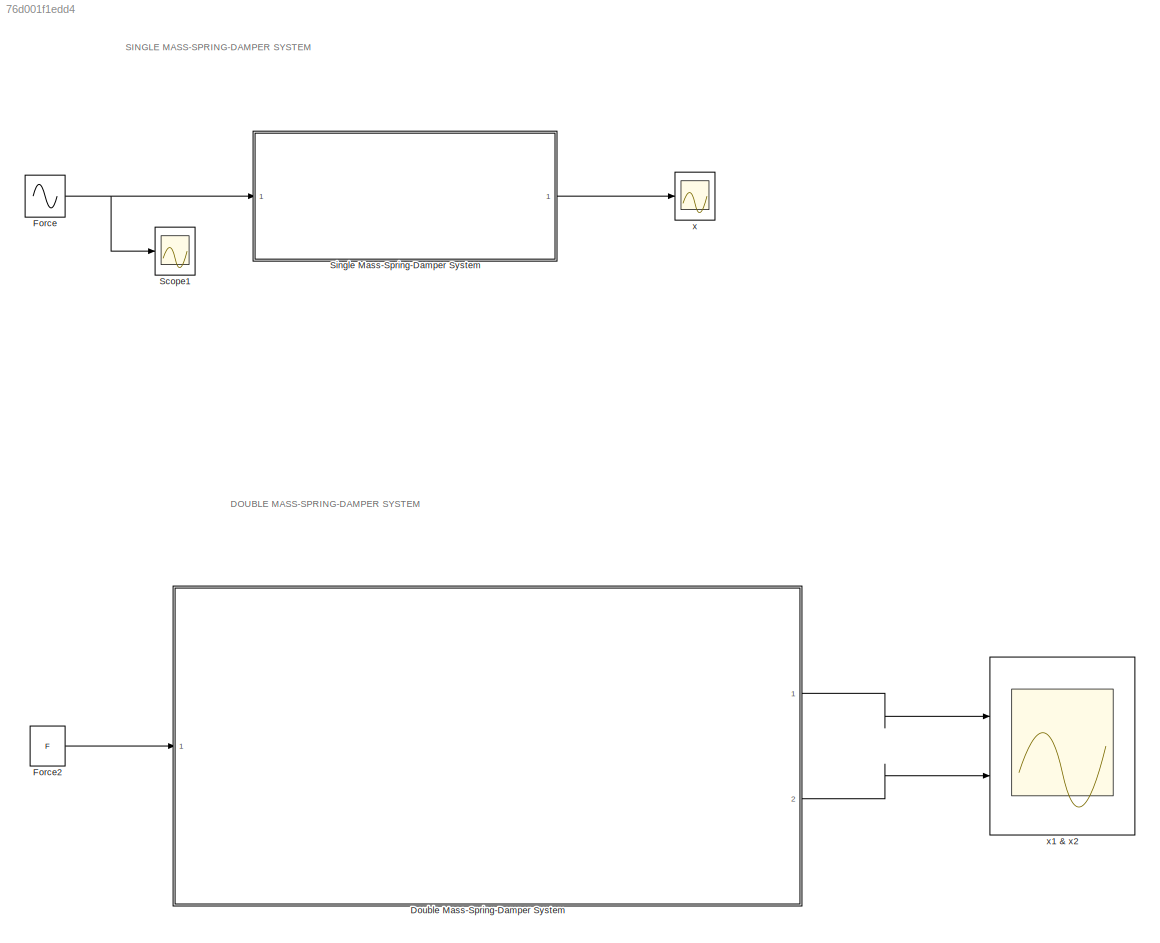
MODEL slx_76d001f1edd4
KIND model
CONFIG AbsTol = auto
CONFIG EnableMultiTasking = off
CONFIG FixedStep = 1e-3
CONFIG MaxStep = auto
CONFIG MinStep = auto
CONFIG RelTol = 1e-3
CONFIG SampleTimeConstraint = Unconstrained
CONFIG SolverName = FixedStepAuto
CONFIG StartTime = 0.0
CONFIG StopTime = 50.0
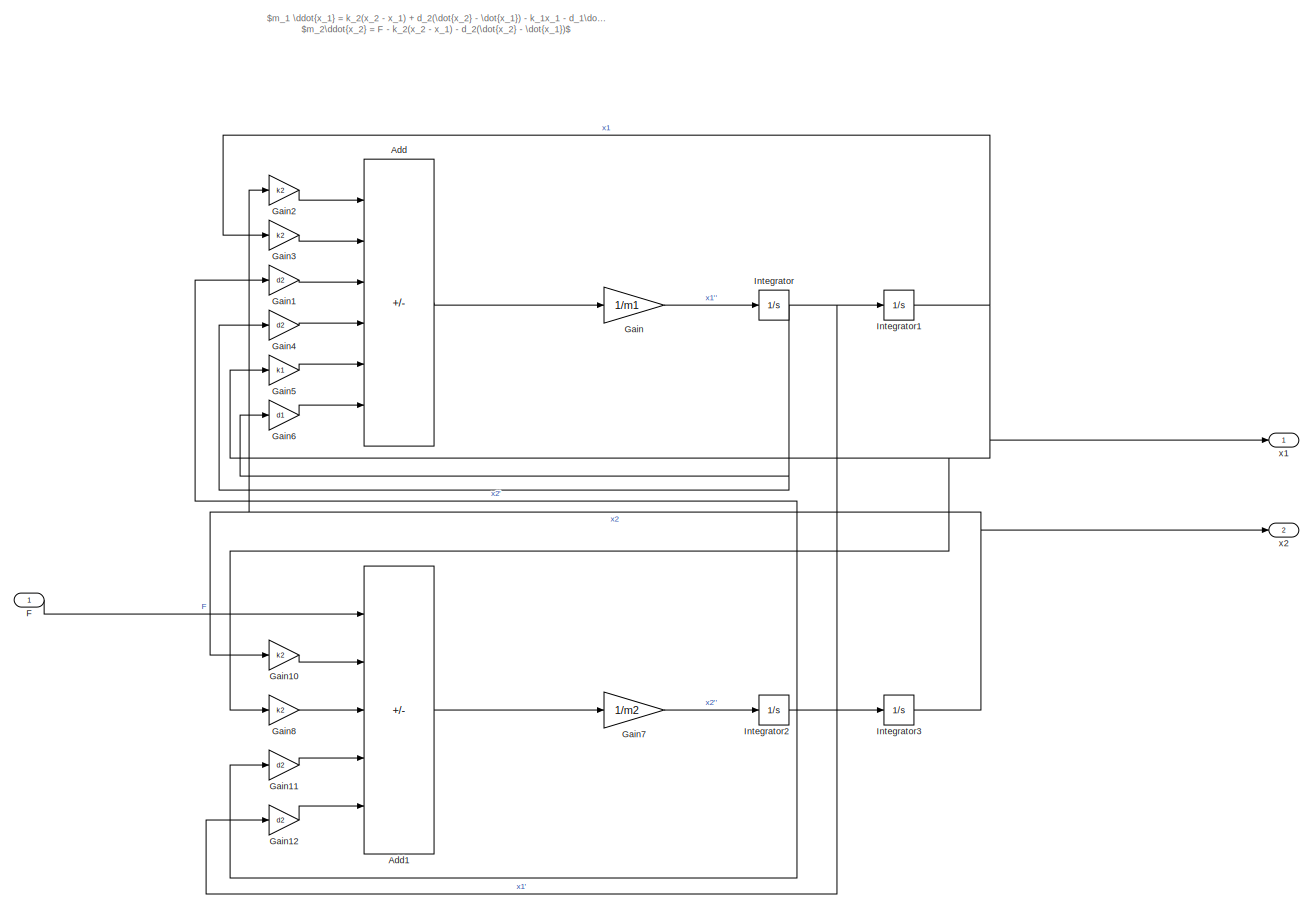
[diagram: Double Mass-Spring-Damper System - part 1/1, most of the canvas]
BLOCK [SubSystem] Double Mass-Spring-Damper System
  Ports = [1, 2]
  RequestExecContextInheritance = off
BLOCK [Sum] Double Mass-Spring-Damper System/Add
  IconShape = rectangular
  Inputs = +-+---
  Ports = [6, 1]
BLOCK [Sum] Double Mass-Spring-Damper System/Add1
  IconShape = rectangular
  Inputs = +-+-+
  Ports = [5, 1]
BLOCK [Inport] Double Mass-Spring-Damper System/F
BLOCK [Gain] Double Mass-Spring-Damper System/Gain
  Gain = 1/m1
BLOCK [Gain] Double Mass-Spring-Damper System/Gain1
  Gain = d2
BLOCK [Gain] Double Mass-Spring-Damper System/Gain10
  Gain = k2
BLOCK [Gain] Double Mass-Spring-Damper System/Gain11
  Gain = d2
BLOCK [Gain] Double Mass-Spring-Damper System/Gain12
  Gain = d2
BLOCK [Gain] Double Mass-Spring-Damper System/Gain2
  Gain = k2
BLOCK [Gain] Double Mass-Spring-Damper System/Gain3
  Gain = k2
BLOCK [Gain] Double Mass-Spring-Damper System/Gain4
  Gain = d2
BLOCK [Gain] Double Mass-Spring-Damper System/Gain5
  Gain = k1
BLOCK [Gain] Double Mass-Spring-Damper System/Gain6
  Gain = d1
BLOCK [Gain] Double Mass-Spring-Damper System/Gain7
  Gain = 1/m2
BLOCK [Gain] Double Mass-Spring-Damper System/Gain8
  Gain = k2
BLOCK [Integrator] Double Mass-Spring-Damper System/Integrator
  Ports = [1, 1]
BLOCK [Integrator] Double Mass-Spring-Damper System/Integrator1
  Ports = [1, 1]
BLOCK [Integrator] Double Mass-Spring-Damper System/Integrator2
  Ports = [1, 1]
BLOCK [Integrator] Double Mass-Spring-Damper System/Integrator3
  Ports = [1, 1]
BLOCK [Outport] Double Mass-Spring-Damper System/x1
BLOCK [Outport] Double Mass-Spring-Damper System/x2
  Port = 2
BLOCK [Sin] Force
  Ports = [0, 1]
  SampleTime = 0
BLOCK [Constant] Force2
  Value = F
BLOCK [Scope] Scope1
  Floating = off
  NumInputPorts = 1
  Ports = [1]
  ScopeSpecificationString = Simulink.scopes.TimeScopeBlockCfg('CurrentConfiguration', extmgr.ConfigurationSet(extmgr.Configuration('Core','General UI',true),extmgr.Configuration('Core','Source UI',true),extmgr.Configuration('Sources','WiredSimulink',true,'DataLoggingVariableName','ScopeData1'),extmgr.Configuration('Visuals','Time Domain',true,'SerializedDisplays',{struct('MinYLimReal','-1.25','MaxYLimReal','1.25','YLabelReal...<+1346ch>
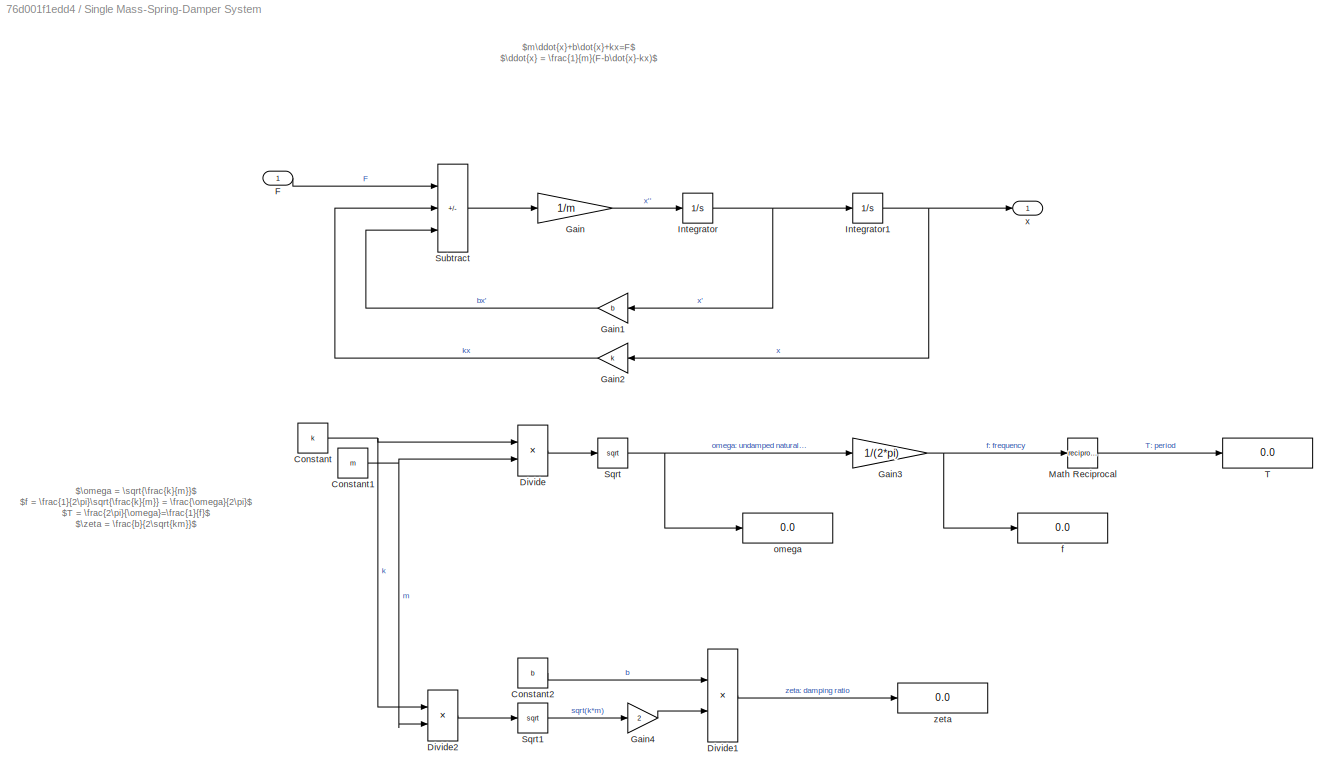
BLOCK [SubSystem] Single Mass-Spring-Damper System
  Ports = [1, 1]
  RequestExecContextInheritance = off
BLOCK [Constant] Single Mass-Spring-Damper System/Constant
  Value = k
BLOCK [Constant] Single Mass-Spring-Damper System/Constant1
  Value = m
BLOCK [Constant] Single Mass-Spring-Damper System/Constant2
  Value = b
BLOCK [Product] Single Mass-Spring-Damper System/Divide
  Inputs = */
  Ports = [2, 1]
BLOCK [Product] Single Mass-Spring-Damper System/Divide1
  Inputs = */
  Ports = [2, 1]
BLOCK [Product] Single Mass-Spring-Damper System/Divide2
  Inputs = **
  Ports = [2, 1]
BLOCK [Inport] Single Mass-Spring-Damper System/F
BLOCK [Gain] Single Mass-Spring-Damper System/Gain
  Gain = 1/m
BLOCK [Gain] Single Mass-Spring-Damper System/Gain1
  Gain = b
BLOCK [Gain] Single Mass-Spring-Damper System/Gain2
  Gain = k
BLOCK [Gain] Single Mass-Spring-Damper System/Gain3
  Gain = 1/(2*pi)
BLOCK [Gain] Single Mass-Spring-Damper System/Gain4
  Gain = 2
BLOCK [Integrator] Single Mass-Spring-Damper System/Integrator
  Ports = [1, 1]
BLOCK [Integrator] Single Mass-Spring-Damper System/Integrator1
  Ports = [1, 1]
BLOCK [Math] Single Mass-Spring-Damper System/Math Reciprocal
  Operator = reciprocal
  Ports = [1, 1]
  SignedPower = on
BLOCK [Sqrt] Single Mass-Spring-Damper System/Sqrt
BLOCK [Sqrt] Single Mass-Spring-Damper System/Sqrt1
BLOCK [Sum] Single Mass-Spring-Damper System/Subtract
  IconShape = rectangular
  Inputs = +--
  Ports = [3, 1]
BLOCK [Display] Single Mass-Spring-Damper System/T
  Decimation = 1
  Ports = [1]
BLOCK [Display] Single Mass-Spring-Damper System/f
  Decimation = 1
  Ports = [1]
BLOCK [Display] Single Mass-Spring-Damper System/omega
  Decimation = 1
  Ports = [1]
BLOCK [Outport] Single Mass-Spring-Damper System/x
BLOCK [Display] Single Mass-Spring-Damper System/zeta
  Decimation = 1
  Ports = [1]
BLOCK [Scope] x
  Floating = off
  NumInputPorts = 1
  Ports = [1]
  ScopeSpecificationString = Simulink.scopes.TimeScopeBlockCfg('CurrentConfiguration', extmgr.ConfigurationSet(extmgr.Configuration('Core','General UI',true),extmgr.Configuration('Core','Source UI',true),extmgr.Configuration('Sources','WiredSimulink',true),extmgr.Configuration('Visuals','Time Domain',true,'SerializedDisplays',{struct('MinYLimReal','-3.61873','MaxYLimReal','4.73673','YLabelReal','','MinYLimMag','0.00000','MaxY...<+1345ch>
BLOCK [Scope] x1 & x2
  Floating = off
  NumInputPorts = 2
  Ports = [2]
  ScopeSpecificationString = Simulink.scopes.TimeScopeBlockCfg('CurrentConfiguration', extmgr.ConfigurationSet(extmgr.Configuration('Core','General UI',true),extmgr.Configuration('Core','Source UI',true),extmgr.Configuration('Sources','WiredSimulink',true,'DataLoggingVariableName','ScopeData2'),extmgr.Configuration('Visuals','Time Domain',true,'SerializedDisplays',{struct('MinYLimReal','-0.67495','MaxYLimReal','6.07452','YLab...<+1463ch>
ANNOTATION (root): DOUBLE MASS-SPRING-DAMPER SYSTEM
ANNOTATION (root): SINGLE MASS-SPRING-DAMPER SYSTEM
ANNOTATION Double Mass-Spring-Damper System: $m_1 \ddot{x_1} = k_2(x_2 - x_1) + d_2(\dot{x_2} - \dot{x_1}) - k_1x_1 - d_1\dot{x_1}$ $m_2\ddot{x_2} = F - k_2(x_2 - x_1) - d_2(\dot{x_2} - \dot{x_1})$
ANNOTATION Single Mass-Spring-Damper System: $m\ddot{x}+b\dot{x}+kx=F$ $\ddot{x} = \frac{1}{m}(F-b\dot{x}-kx)$
ANNOTATION Single Mass-Spring-Damper System: $\omega = \sqrt{\frac{k}{m}}$ $f = \frac{1}{2\pi}\sqrt{\frac{k}{m}} = \frac{\omega}{2\pi}$ $T = \frac{2\pi}{\omega}=\frac{1}{f}$ $\zeta = \frac{b}{2\sqrt{km}}$
LINE Double Mass-Spring-Damper System/Add1:1 -> Double Mass-Spring-Damper System/Gain7:1
LINE Double Mass-Spring-Damper System/Add:1 -> Double Mass-Spring-Damper System/Gain:1
LINE Double Mass-Spring-Damper System/F:1 -> Double Mass-Spring-Damper System/Add1:1
LINE Double Mass-Spring-Damper System/Gain10:1 -> Double Mass-Spring-Damper System/Add1:2
LINE Double Mass-Spring-Damper System/Gain11:1 -> Double Mass-Spring-Damper System/Add1:4
LINE Double Mass-Spring-Damper System/Gain12:1 -> Double Mass-Spring-Damper System/Add1:5
LINE Double Mass-Spring-Damper System/Gain1:1 -> Double Mass-Spring-Damper System/Add:3
LINE Double Mass-Spring-Damper System/Gain2:1 -> Double Mass-Spring-Damper System/Add:1
LINE Double Mass-Spring-Damper System/Gain3:1 -> Double Mass-Spring-Damper System/Add:2
LINE Double Mass-Spring-Damper System/Gain4:1 -> Double Mass-Spring-Damper System/Add:4
LINE Double Mass-Spring-Damper System/Gain5:1 -> Double Mass-Spring-Damper System/Add:5
LINE Double Mass-Spring-Damper System/Gain6:1 -> Double Mass-Spring-Damper System/Add:6
LINE Double Mass-Spring-Damper System/Gain7:1 -> Double Mass-Spring-Damper System/Integrator2:1
LINE Double Mass-Spring-Damper System/Gain8:1 -> Double Mass-Spring-Damper System/Add1:3
LINE Double Mass-Spring-Damper System/Gain:1 -> Double Mass-Spring-Damper System/Integrator:1
NET Double Mass-Spring-Damper System/Integrator1:1 -> Double Mass-Spring-Damper System/Gain3:1, Double Mass-Spring-Damper System/Gain5:1, Double Mass-Spring-Damper System/Gain8:1, Double Mass-Spring-Damper System/x1:1
NET Double Mass-Spring-Damper System/Integrator2:1 -> Double Mass-Spring-Damper System/Gain11:1, Double Mass-Spring-Damper System/Gain1:1, Double Mass-Spring-Damper System/Integrator3:1
NET Double Mass-Spring-Damper System/Integrator3:1 -> Double Mass-Spring-Damper System/Gain10:1, Double Mass-Spring-Damper System/Gain2:1, Double Mass-Spring-Damper System/x2:1
NET Double Mass-Spring-Damper System/Integrator:1 -> Double Mass-Spring-Damper System/Gain12:1, Double Mass-Spring-Damper System/Gain4:1, Double Mass-Spring-Damper System/Gain6:1, Double Mass-Spring-Damper System/Integrator1:1
LINE Double Mass-Spring-Damper System:1 -> x1 & x2:1
LINE Double Mass-Spring-Damper System:2 -> x1 & x2:2
LINE Force2:1 -> Double Mass-Spring-Damper System:1
NET Force:1 -> Scope1:1, Single Mass-Spring-Damper System:1
NET Single Mass-Spring-Damper System/Constant1:1 -> Single Mass-Spring-Damper System/Divide2:2, Single Mass-Spring-Damper System/Divide:2
LINE Single Mass-Spring-Damper System/Constant2:1 -> Single Mass-Spring-Damper System/Divide1:1
NET Single Mass-Spring-Damper System/Constant:1 -> Single Mass-Spring-Damper System/Divide2:1, Single Mass-Spring-Damper System/Divide:1
LINE Single Mass-Spring-Damper System/Divide1:1 -> Single Mass-Spring-Damper System/zeta:1
LINE Single Mass-Spring-Damper System/Divide2:1 -> Single Mass-Spring-Damper System/Sqrt1:1
LINE Single Mass-Spring-Damper System/Divide:1 -> Single Mass-Spring-Damper System/Sqrt:1
LINE Single Mass-Spring-Damper System/F:1 -> Single Mass-Spring-Damper System/Subtract:1
LINE Single Mass-Spring-Damper System/Gain1:1 -> Single Mass-Spring-Damper System/Subtract:3
LINE Single Mass-Spring-Damper System/Gain2:1 -> Single Mass-Spring-Damper System/Subtract:2
NET Single Mass-Spring-Damper System/Gain3:1 -> Single Mass-Spring-Damper System/Math Reciprocal:1, Single Mass-Spring-Damper System/f:1
LINE Single Mass-Spring-Damper System/Gain4:1 -> Single Mass-Spring-Damper System/Divide1:2
LINE Single Mass-Spring-Damper System/Gain:1 -> Single Mass-Spring-Damper System/Integrator:1
NET Single Mass-Spring-Damper System/Integrator1:1 -> Single Mass-Spring-Damper System/Gain2:1, Single Mass-Spring-Damper System/x:1
NET Single Mass-Spring-Damper System/Integrator:1 -> Single Mass-Spring-Damper System/Gain1:1, Single Mass-Spring-Damper System/Integrator1:1
LINE Single Mass-Spring-Damper System/Math Reciprocal:1 -> Single Mass-Spring-Damper System/T:1
LINE Single Mass-Spring-Damper System/Sqrt1:1 -> Single Mass-Spring-Damper System/Gain4:1
NET Single Mass-Spring-Damper System/Sqrt:1 -> Single Mass-Spring-Damper System/Gain3:1, Single Mass-Spring-Damper System/omega:1
LINE Single Mass-Spring-Damper System/Subtract:1 -> Single Mass-Spring-Damper System/Gain:1
LINE Single Mass-Spring-Damper System:1 -> x:1
note: NET lines group one-source signal fan-out (src -> all destinations, sorted); 1:1 wires keep LINE
